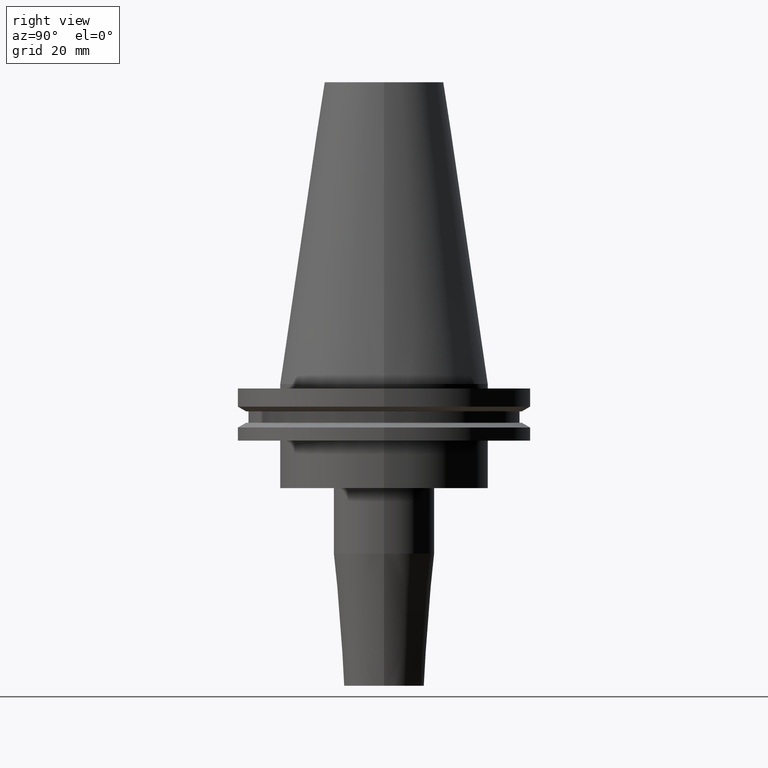
[diagram: clean part render]
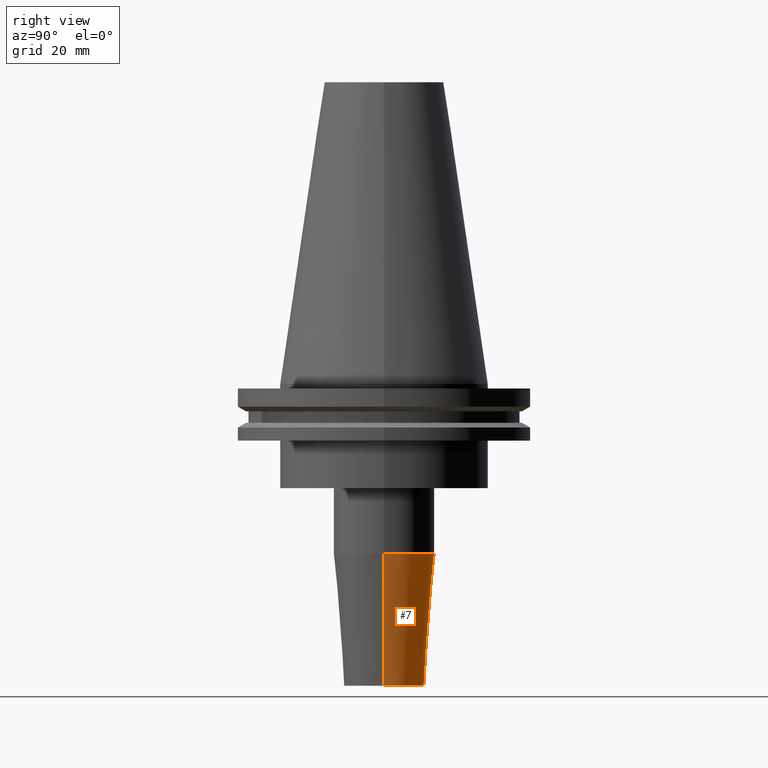
[diagram: same view with one face highlighted and labeled with its STEP entity id]
A machine part, right view. The second image highlights one B-rep face of the part: STEP entity #7.
In plain terms, the highlighted conical surface has half-angle 4.5 deg.
Its self-contained STEP definition (entity closure, byte-faithful):
#7 = ADVANCED_FACE ( 'NONE', ( #798 ), #177, .T. ) ;
#18 = DIRECTION ( 'NONE',  ( -0.07845909572783753283, 9.608468044709199834E-18, 0.9969173337331286300 ) ) ;
#30 = CARTESIAN_POINT ( 'NONE',  ( -13.50000000000000000, 1.867586368699713770E-15, -101.5999999999999943 ) ) ;
#36 = CIRCLE ( 'NONE', #708, 13.50000000000000000 ) ;
#72 = ORIENTED_EDGE ( 'NONE', *, *, #552, .T. ) ;
#127 = CARTESIAN_POINT ( 'NONE',  ( 0.000000000000000000, 0.000000000000000000, -101.5999999999999943 ) ) ;
#177 = CONICAL_SURFACE ( 'NONE', #388, 13.50000000000000000, 0.07853981633973740328 ) ;
#191 = ORIENTED_EDGE ( 'NONE', *, *, #467, .F. ) ;
#199 = ORIENTED_EDGE ( 'NONE', *, *, #506, .F. ) ;
#202 = DIRECTION ( 'NONE',  ( -0.000000000000000000, -0.000000000000000000, 1.000000000000000000 ) ) ;
#209 = DIRECTION ( 'NONE',  ( 1.000000000000000000, 0.000000000000000000, 0.000000000000000000 ) ) ;
#217 = CARTESIAN_POINT ( 'NONE',  ( -17.00000000000000000, 2.081899558550500280E-15, -57.12828342338427490 ) ) ;
#260 = AXIS2_PLACEMENT_3D ( 'NONE', #404, #597, #209 ) ;
#325 = ORIENTED_EDGE ( 'NONE', *, *, #390, .T. ) ;
#330 = VERTEX_POINT ( 'NONE', #508 ) ;
#348 = CARTESIAN_POINT ( 'NONE',  ( 0.000000000000000000, 0.000000000000000000, -101.5999999999999943 ) ) ;
#364 = LINE ( 'NONE', #815, #718 ) ;
#388 = AXIS2_PLACEMENT_3D ( 'NONE', #348, #202, #731 ) ;
#390 = EDGE_CURVE ( 'NONE', #448, #598, #36, .T. ) ;
#397 = LINE ( 'NONE', #653, #399 ) ;
#399 = VECTOR ( 'NONE', #785, 999.9999999999998863 ) ;
#404 = CARTESIAN_POINT ( 'NONE',  ( 0.000000000000000000, 0.000000000000000000, -57.12828342338427490 ) ) ;
#446 = EDGE_LOOP ( 'NONE', ( #325, #72, #199, #191 ) ) ;
#448 = VERTEX_POINT ( 'NONE', #790 ) ;
#467 = EDGE_CURVE ( 'NONE', #448, #330, #397, .T. ) ;
#484 = CIRCLE ( 'NONE', #260, 17.00000000000000000 ) ;
#506 = EDGE_CURVE ( 'NONE', #330, #555, #484, .T. ) ;
#508 = CARTESIAN_POINT ( 'NONE',  ( 17.00000000000000000, 0.000000000000000000, -57.12828342338427490 ) ) ;
#540 = DIRECTION ( 'NONE',  ( 1.000000000000000000, 0.000000000000000000, 0.000000000000000000 ) ) ;
#552 = EDGE_CURVE ( 'NONE', #598, #555, #364, .T. ) ;
#555 = VERTEX_POINT ( 'NONE', #217 ) ;
#597 = DIRECTION ( 'NONE',  ( -0.000000000000000000, -0.000000000000000000, 1.000000000000000000 ) ) ;
#598 = VERTEX_POINT ( 'NONE', #30 ) ;
#650 = DIRECTION ( 'NONE',  ( -0.000000000000000000, -0.000000000000000000, 1.000000000000000000 ) ) ;
#653 = CARTESIAN_POINT ( 'NONE',  ( 13.50000000000000000, 0.000000000000000000, -101.5999999999999943 ) ) ;
#708 = AXIS2_PLACEMENT_3D ( 'NONE', #127, #650, #540 ) ;
#718 = VECTOR ( 'NONE', #18, 999.9999999999998863 ) ;
#731 = DIRECTION ( 'NONE',  ( 1.000000000000000000, 0.000000000000000000, 0.000000000000000000 ) ) ;
#785 = DIRECTION ( 'NONE',  ( 0.07845909572783753283, 0.000000000000000000, 0.9969173337331286300 ) ) ;
#790 = CARTESIAN_POINT ( 'NONE',  ( 13.50000000000000000, 0.000000000000000000, -101.5999999999999943 ) ) ;
#798 = FACE_OUTER_BOUND ( 'NONE', #446, .T. ) ;
#815 = CARTESIAN_POINT ( 'NONE',  ( -13.50000000000000000, 1.653273178848926867E-15, -101.5999999999999943 ) ) ;